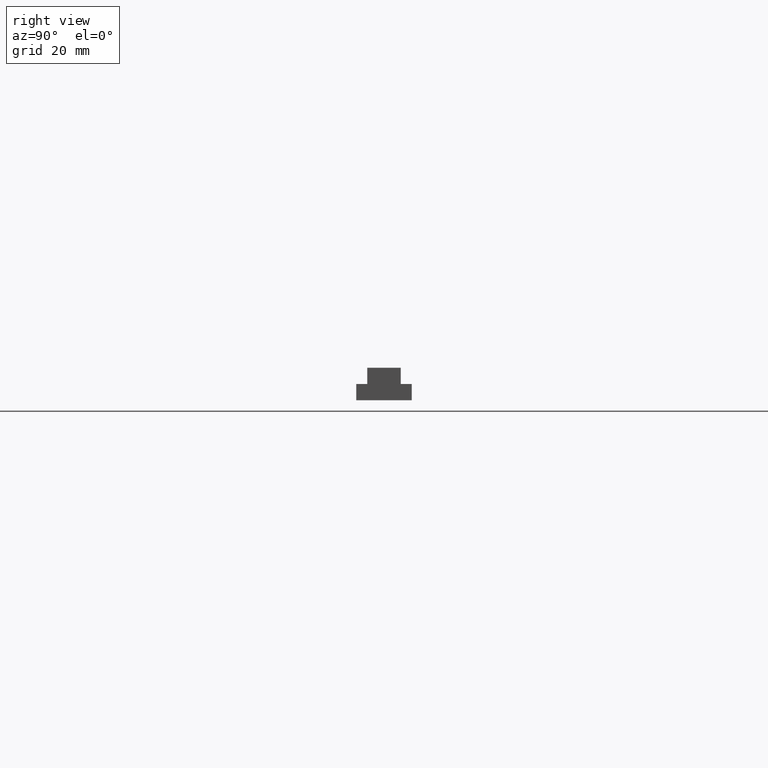
[diagram: clean part render]
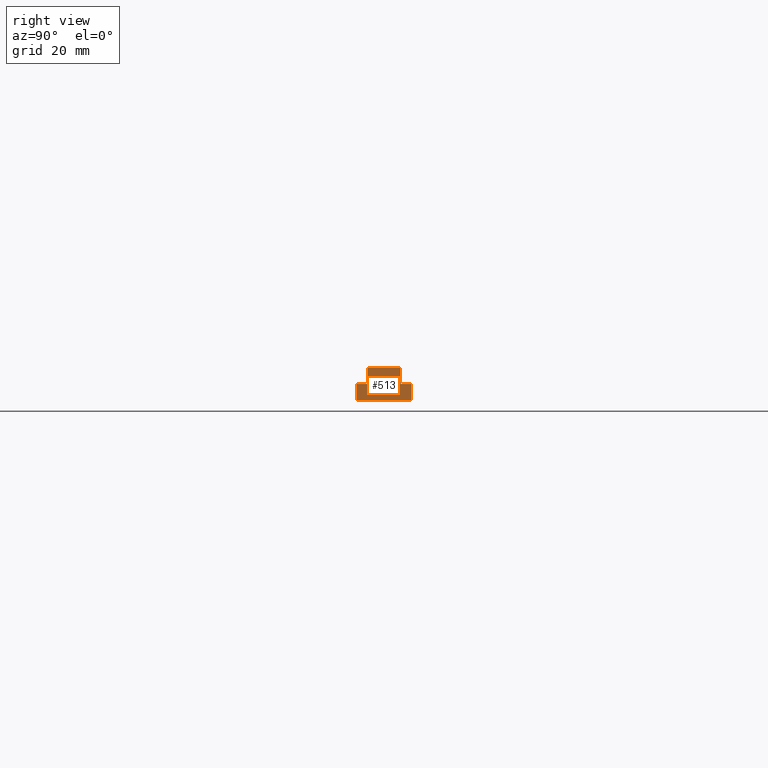
[diagram: same view with one face highlighted and labeled with its STEP entity id]
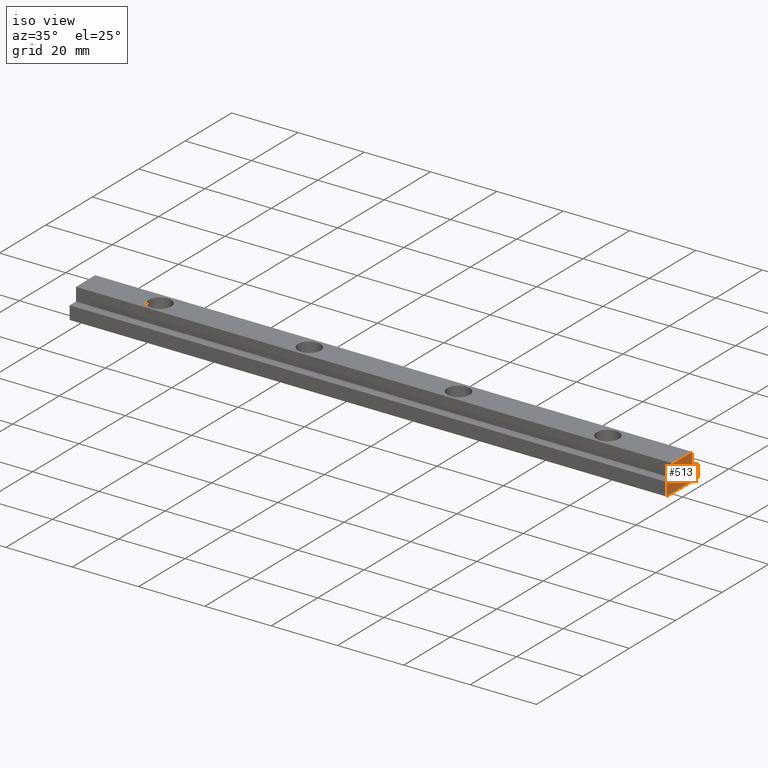
[diagram: same view with one face highlighted and labeled with its STEP entity id]
A machine part, right view. The second image highlights one B-rep face of the part: STEP entity #513.
A second angle (iso view) of the same face is appended — the face is thin or edge-on in the first view.
In plain terms, the highlighted planar face has unit normal (-1, 0, 0).
Its self-contained STEP definition (entity closure, byte-faithful):
#185=CARTESIAN_POINT('',(180.0,6.850000000000009,4.000000000000000));
#186=VERTEX_POINT('',#185);
#193=CARTESIAN_POINT('',(180.0,6.850000000000009,-4.194415E-016));
#194=VERTEX_POINT('',#193);
#195=CARTESIAN_POINT('',(180.0,6.850000000000009,4.000000000000000));
#196=DIRECTION('',(0.0,0.0,-1.0));
#197=VECTOR('',#196,4.0);
#198=LINE('',#195,#197);
#199=EDGE_CURVE('',#186,#194,#198,.T.);
#224=CARTESIAN_POINT('',(180.0,-6.849999999999984,4.194415E-016));
#225=VERTEX_POINT('',#224);
#226=CARTESIAN_POINT('',(180.0,6.850000000000009,-4.194415E-016));
#227=DIRECTION('',(0.0,-1.0,0.0));
#228=VECTOR('',#227,13.699999999999996);
#229=LINE('',#226,#228);
#230=EDGE_CURVE('',#194,#225,#229,.T.);
#295=CARTESIAN_POINT('',(180.0,-6.849999999999987,4.0));
#296=VERTEX_POINT('',#295);
#297=CARTESIAN_POINT('',(180.0,-6.849999999999984,4.194415E-016));
#298=DIRECTION('',(0.0,0.0,1.0));
#299=VECTOR('',#298,4.000000000000000);
#300=LINE('',#297,#299);
#301=EDGE_CURVE('',#225,#296,#300,.T.);
#326=CARTESIAN_POINT('',(180.0,-4.149999999999984,4.0));
#327=VERTEX_POINT('',#326);
#328=CARTESIAN_POINT('',(180.0,-6.849999999999987,4.0));
#329=DIRECTION('',(0.0,1.0,0.0));
#330=VECTOR('',#329,2.700000000000003);
#331=LINE('',#328,#330);
#332=EDGE_CURVE('',#296,#327,#331,.T.);
#357=CARTESIAN_POINT('',(180.0,-4.149999999999984,8.0));
#358=VERTEX_POINT('',#357);
#359=CARTESIAN_POINT('',(180.0,-4.149999999999984,4.0));
#360=DIRECTION('',(0.0,0.0,1.0));
#361=VECTOR('',#360,4.0);
#362=LINE('',#359,#361);
#363=EDGE_CURVE('',#327,#358,#362,.T.);
#388=CARTESIAN_POINT('',(180.0,4.150000000000014,8.0));
#389=VERTEX_POINT('',#388);
#390=CARTESIAN_POINT('',(180.0,-4.149999999999984,8.0));
#391=DIRECTION('',(0.0,1.0,0.0));
#392=VECTOR('',#391,8.299999999999997);
#393=LINE('',#390,#392);
#394=EDGE_CURVE('',#358,#389,#393,.T.);
#459=CARTESIAN_POINT('',(180.0,4.150000000000013,4.000000000000000));
#460=VERTEX_POINT('',#459);
#461=CARTESIAN_POINT('',(180.0,4.150000000000014,8.0));
#462=DIRECTION('',(0.0,0.0,-1.0));
#463=VECTOR('',#462,4.0);
#464=LINE('',#461,#463);
#465=EDGE_CURVE('',#389,#460,#464,.T.);
#488=CARTESIAN_POINT('',(180.0,4.150000000000013,4.000000000000000));
#489=DIRECTION('',(0.0,1.0,0.0));
#490=VECTOR('',#489,2.699999999999996);
#491=LINE('',#488,#490);
#492=EDGE_CURVE('',#460,#186,#491,.T.);
#498=CARTESIAN_POINT('',(180.0,7.535000000000011,-0.400000000000001));
#499=DIRECTION('',(-1.0,0.0,0.0));
#500=DIRECTION('',(0.0,-1.0,0.0));
#501=AXIS2_PLACEMENT_3D('',#498,#499,#500);
#502=PLANE('',#501);
#503=ORIENTED_EDGE('',*,*,#199,.F.);
#504=ORIENTED_EDGE('',*,*,#492,.F.);
#505=ORIENTED_EDGE('',*,*,#465,.F.);
#506=ORIENTED_EDGE('',*,*,#394,.F.);
#507=ORIENTED_EDGE('',*,*,#363,.F.);
#508=ORIENTED_EDGE('',*,*,#332,.F.);
#509=ORIENTED_EDGE('',*,*,#301,.F.);
#510=ORIENTED_EDGE('',*,*,#230,.F.);
#511=EDGE_LOOP('',(#503,#504,#505,#506,#507,#508,#509,#510));
#512=FACE_OUTER_BOUND('',#511,.T.);
#513=ADVANCED_FACE('',(#512),#502,.F.);